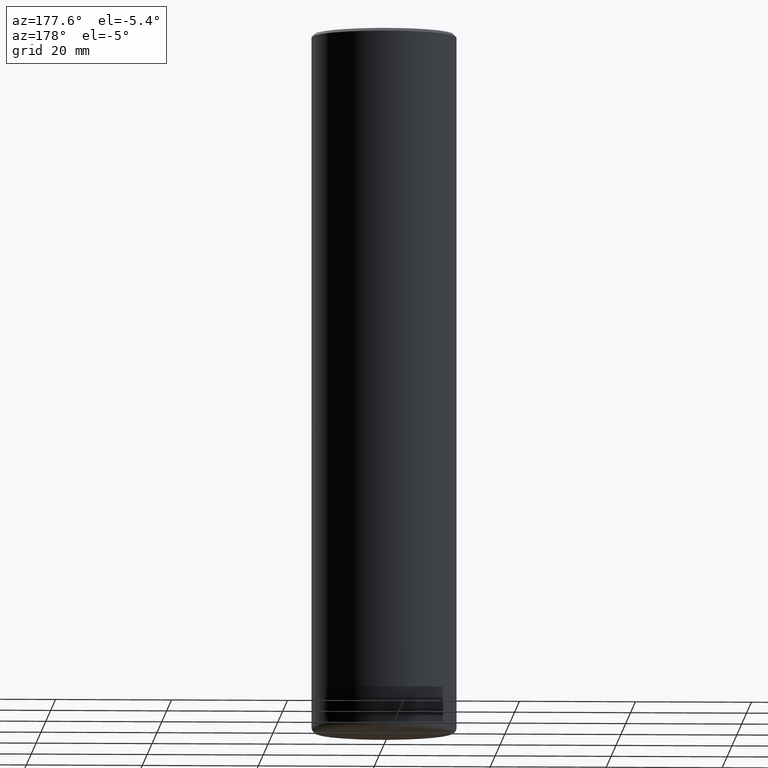
[diagram: clean part render]
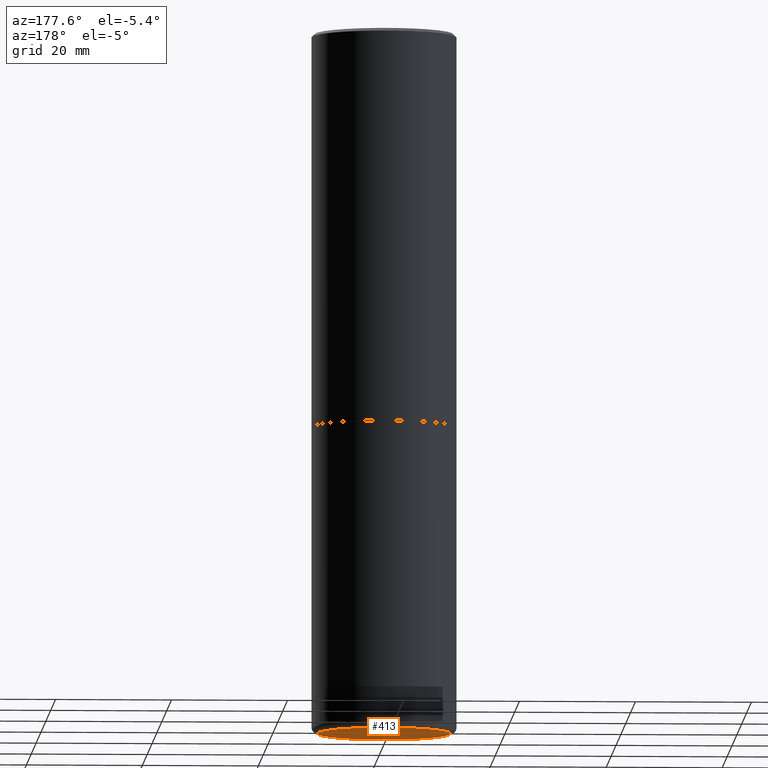
[diagram: same view with one face highlighted and labeled with its STEP entity id]
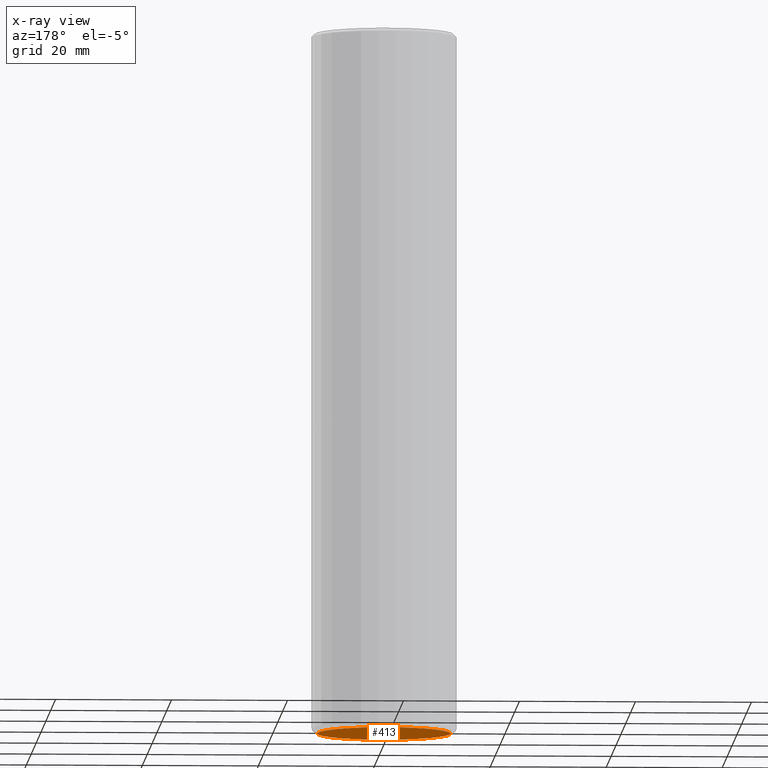
[diagram: x-ray of the same camera — body ghosted, the highlighted face saturated]
A machine part, auxiliary view. The second image highlights one B-rep face of the part: STEP entity #413.
The next image is the same camera in x-ray: the body ghosted, the highlighted face saturated — about 0% of this face is hidden behind the body in this view.
In plain terms, the highlighted planar face has unit normal (0, -0, -1).
Its self-contained STEP definition (entity closure, byte-faithful):
#20 = CARTESIAN_POINT ( 'NONE',  ( 1.164972429890475298E-28, -1.663271880198097531E-14, -4.763799999999999812 ) ) ;
#35 = AXIS2_PLACEMENT_3D ( 'NONE', #20, #150, #57 ) ;
#54 = FACE_OUTER_BOUND ( 'NONE', #234, .T. ) ;
#55 = VERTEX_POINT ( 'NONE', #334 ) ;
#57 = DIRECTION ( 'NONE',  ( -1.000000000000000000, 6.982962677686265922E-15, -4.876176775795935793E-29 ) ) ;
#83 = ORIENTED_EDGE ( 'NONE', *, *, #386, .F. ) ;
#94 = DIRECTION ( 'NONE',  ( 1.000000000000000000, -6.982962677686265133E-15, 0.000000000000000000 ) ) ;
#150 = DIRECTION ( 'NONE',  ( 2.438088387897960049E-29, -3.491481338843145188E-15, -1.000000000000000000 ) ) ;
#161 = CARTESIAN_POINT ( 'NONE',  ( 1.164972429890475298E-28, -1.663271880198097531E-14, -4.763799999999999812 ) ) ;
#171 = AXIS2_PLACEMENT_3D ( 'NONE', #161, #242, #174 ) ;
#174 = DIRECTION ( 'NONE',  ( 1.000000000000000000, -6.982962677686265133E-15, 0.000000000000000000 ) ) ;
#177 = CIRCLE ( 'NONE', #314, 0.4527499999999999858 ) ;
#214 = CARTESIAN_POINT ( 'NONE',  ( 1.164972429890475298E-28, -1.663271880198097531E-14, -4.763799999999999812 ) ) ;
#234 = EDGE_LOOP ( 'NONE', ( #255, #83 ) ) ;
#242 = DIRECTION ( 'NONE',  ( -2.445468806185136597E-29, 3.491481338843145583E-15, 1.000000000000000000 ) ) ;
#255 = ORIENTED_EDGE ( 'NONE', *, *, #382, .F. ) ;
#310 = DIRECTION ( 'NONE',  ( -2.445468806185136597E-29, 3.491481338843145583E-15, 1.000000000000000000 ) ) ;
#314 = AXIS2_PLACEMENT_3D ( 'NONE', #214, #310, #94 ) ;
#315 = PLANE ( 'NONE',  #35 ) ;
#334 = CARTESIAN_POINT ( 'NONE',  ( 0.4527499999999999858, -1.979425515430343424E-14, -4.763799999999999812 ) ) ;
#347 = VERTEX_POINT ( 'NONE', #360 ) ;
#360 = CARTESIAN_POINT ( 'NONE',  ( -0.4527499999999999858, -1.320697746450717212E-14, -4.763799999999999812 ) ) ;
#382 = EDGE_CURVE ( 'NONE', #55, #347, #389, .T. ) ;
#386 = EDGE_CURVE ( 'NONE', #347, #55, #177, .T. ) ;
#389 = CIRCLE ( 'NONE', #171, 0.4527499999999999858 ) ;
#413 = ADVANCED_FACE ( 'NONE', ( #54 ), #315, .T. ) ;